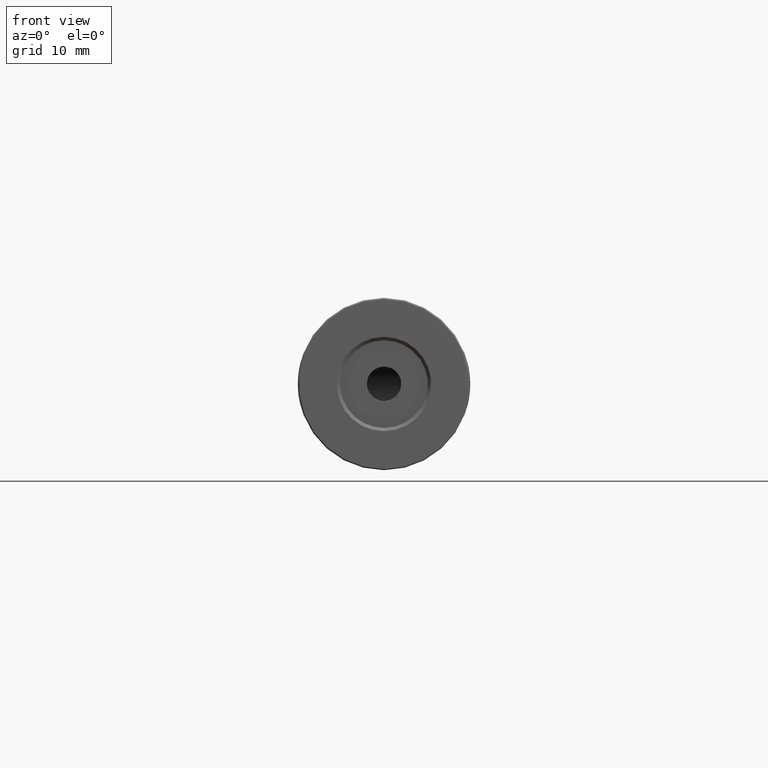
[diagram: clean part render]
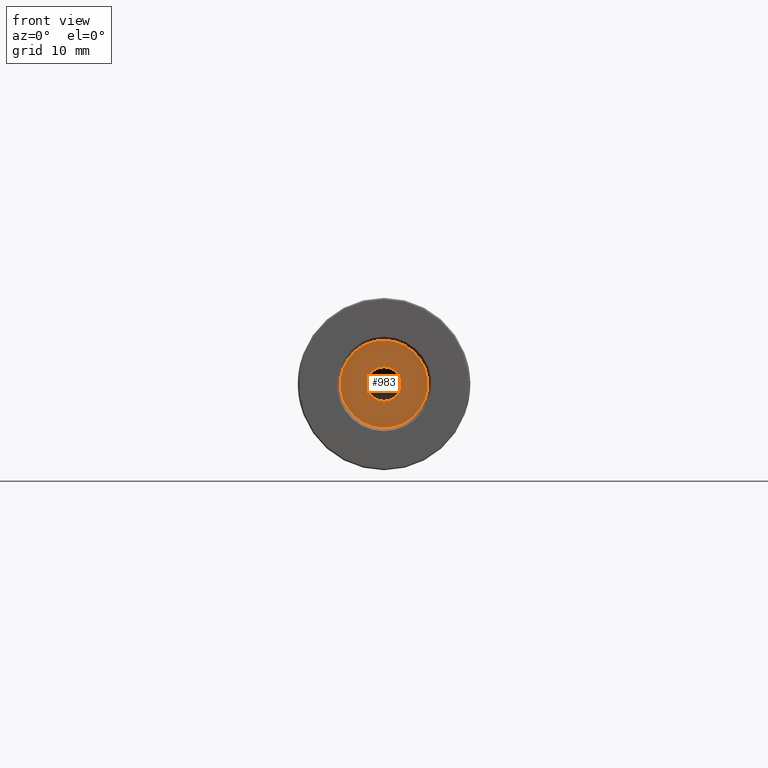
[diagram: same view with one face highlighted and labeled with its STEP entity id]
A machine part, front view. The second image highlights one B-rep face of the part: STEP entity #983.
In plain terms, the highlighted planar face has unit normal (0, -1, 0).
Its self-contained STEP definition (entity closure, byte-faithful):
#34 = CIRCLE ( 'NONE', #1712, 2.499999999999995115 ) ;
#39 = AXIS2_PLACEMENT_3D ( 'NONE', #1014, #2328, #182 ) ;
#78 = DIRECTION ( 'NONE',  ( 0.0000000000000000000, 0.0000000000000000000, 1.000000000000000000 ) ) ;
#182 = DIRECTION ( 'NONE',  ( 0.0000000000000000000, 0.0000000000000000000, -1.000000000000000000 ) ) ;
#319 = EDGE_LOOP ( 'NONE', ( #762, #3078 ) ) ;
#538 = EDGE_CURVE ( 'NONE', #650, #946, #2434, .T. ) ;
#650 = VERTEX_POINT ( 'NONE', #3199 ) ;
#762 = ORIENTED_EDGE ( 'NONE', *, *, #538, .F. ) ;
#840 = DIRECTION ( 'NONE',  ( -0.0000000000000000000, 1.000000000000000000, -0.0000000000000000000 ) ) ;
#882 = FACE_OUTER_BOUND ( 'NONE', #319, .T. ) ;
#946 = VERTEX_POINT ( 'NONE', #2244 ) ;
#951 = PLANE ( 'NONE',  #1596 ) ;
#970 = DIRECTION ( 'NONE',  ( -0.0000000000000000000, 1.000000000000000000, -0.0000000000000000000 ) ) ;
#983 = ADVANCED_FACE ( 'NONE', ( #1190, #882 ), #951, .T. ) ;
#987 = CIRCLE ( 'NONE', #3215, 6.350000000000001421 ) ;
#991 = VERTEX_POINT ( 'NONE', #1137 ) ;
#1000 = DIRECTION ( 'NONE',  ( 0.0000000000000000000, 0.0000000000000000000, 1.000000000000000000 ) ) ;
#1014 = CARTESIAN_POINT ( 'NONE',  ( -22.50520183104453409, -48.10174781523060972, 50.00000000000000000 ) ) ;
#1062 = CARTESIAN_POINT ( 'NONE',  ( -22.50520183104453409, -48.10174781523060972, 50.00000000000000000 ) ) ;
#1068 = EDGE_CURVE ( 'NONE', #1220, #991, #2831, .T. ) ;
#1137 = CARTESIAN_POINT ( 'NONE',  ( -22.50520183104453409, -48.10174781523060972, 47.50000000000000711 ) ) ;
#1190 = FACE_BOUND ( 'NONE', #1726, .T. ) ;
#1220 = VERTEX_POINT ( 'NONE', #3142 ) ;
#1596 = AXIS2_PLACEMENT_3D ( 'NONE', #2468, #2209, #78 ) ;
#1653 = AXIS2_PLACEMENT_3D ( 'NONE', #2526, #970, #1000 ) ;
#1712 = AXIS2_PLACEMENT_3D ( 'NONE', #3293, #3034, #2770 ) ;
#1726 = EDGE_LOOP ( 'NONE', ( #2521, #1758 ) ) ;
#1758 = ORIENTED_EDGE ( 'NONE', *, *, #1068, .F. ) ;
#1778 = EDGE_CURVE ( 'NONE', #946, #650, #987, .T. ) ;
#2209 = DIRECTION ( 'NONE',  ( 0.0000000000000000000, -1.000000000000000000, 0.0000000000000000000 ) ) ;
#2244 = CARTESIAN_POINT ( 'NONE',  ( -22.50520183104453409, -48.10174781523060972, 56.35000000000000142 ) ) ;
#2328 = DIRECTION ( 'NONE',  ( 0.0000000000000000000, -1.000000000000000000, 0.0000000000000000000 ) ) ;
#2434 = CIRCLE ( 'NONE', #1653, 6.350000000000001421 ) ;
#2468 = CARTESIAN_POINT ( 'NONE',  ( -22.50520183104453409, -48.10174781523060972, 50.00000000000000000 ) ) ;
#2521 = ORIENTED_EDGE ( 'NONE', *, *, #3234, .F. ) ;
#2526 = CARTESIAN_POINT ( 'NONE',  ( -22.50520183104453409, -48.10174781523060972, 50.00000000000000000 ) ) ;
#2688 = DIRECTION ( 'NONE',  ( 0.0000000000000000000, 0.0000000000000000000, 1.000000000000000000 ) ) ;
#2770 = DIRECTION ( 'NONE',  ( 0.0000000000000000000, 0.0000000000000000000, -1.000000000000000000 ) ) ;
#2831 = CIRCLE ( 'NONE', #39, 2.499999999999995115 ) ;
#3034 = DIRECTION ( 'NONE',  ( 0.0000000000000000000, -1.000000000000000000, 0.0000000000000000000 ) ) ;
#3078 = ORIENTED_EDGE ( 'NONE', *, *, #1778, .F. ) ;
#3142 = CARTESIAN_POINT ( 'NONE',  ( -22.50520183104453409, -48.10174781523060972, 52.50000000000000000 ) ) ;
#3199 = CARTESIAN_POINT ( 'NONE',  ( -22.50520183104453409, -48.10174781523060972, 43.64999999999999858 ) ) ;
#3215 = AXIS2_PLACEMENT_3D ( 'NONE', #1062, #840, #2688 ) ;
#3234 = EDGE_CURVE ( 'NONE', #991, #1220, #34, .T. ) ;
#3293 = CARTESIAN_POINT ( 'NONE',  ( -22.50520183104453409, -48.10174781523060972, 50.00000000000000000 ) ) ;